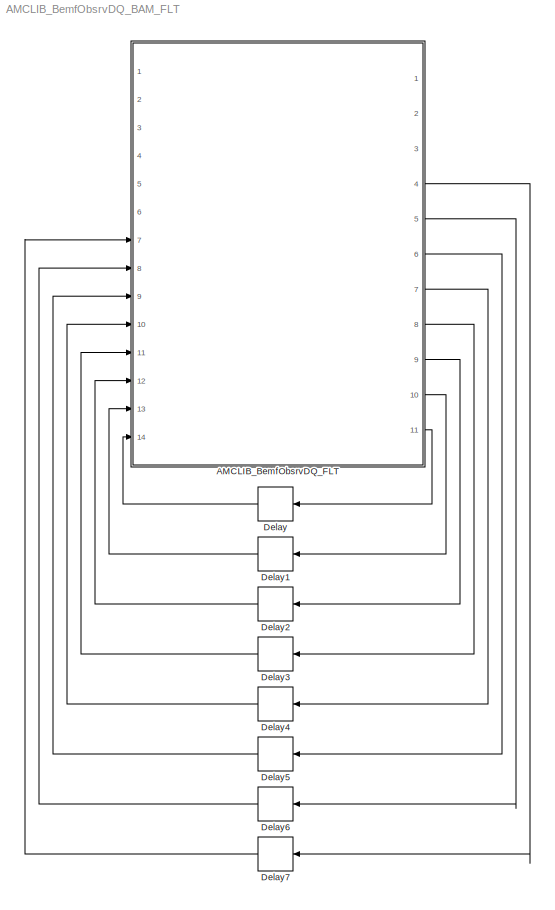
MODEL AMCLIB_BemfObsrvDQ_BAM_FLT
KIND model
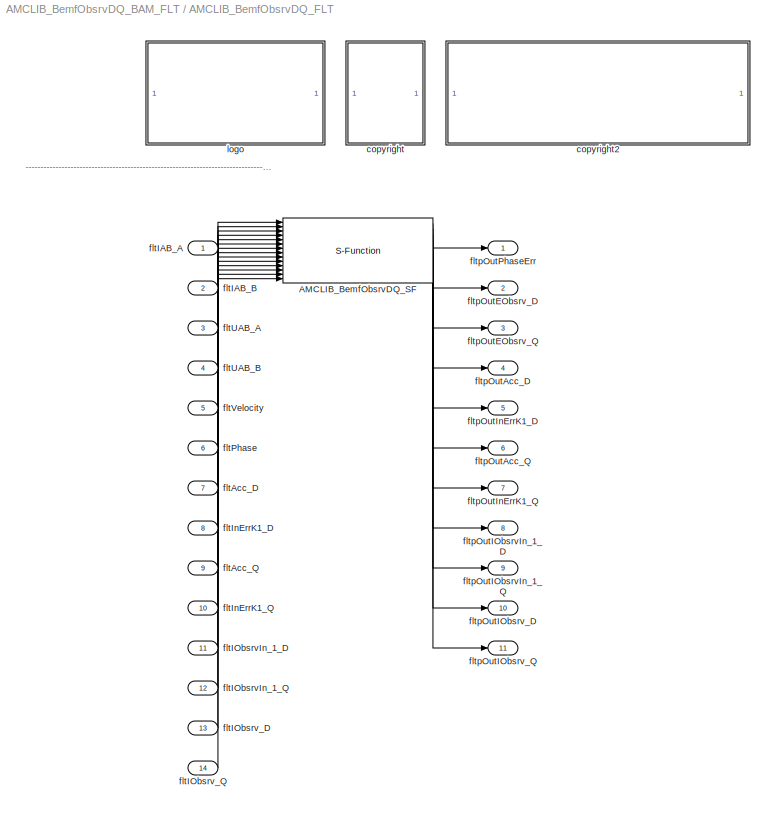
BLOCK [SubSystem] AMCLIB_BemfObsrvDQ_FLT
  Ports = [14, 11]
  RequestExecContextInheritance = off
  SID = 1
BLOCK [S-Function] AMCLIB_BemfObsrvDQ_FLT/AMCLIB_BemfObsrvDQ_SF
  EnableBusSupport = off
  FunctionName = AMCLIB_BemfObsrvDQ_SF_FLT
  Parameters = fltIGain,fltUGain,fltWIGain,fltEGain,fltCC1sc_D,fltCC1sc_Q,fltCC2sc_D,fltCC2sc_Q,fltUpperLimit_D,fltUpperLimit_Q,fltLowerLimit_D,fltLowerLimit_Q
  Ports = [14, 11]
  SID = 4
BLOCK [SubSystem] AMCLIB_BemfObsrvDQ_FLT/<copyright redacted>
  Ports = []
  RequestExecContextInheritance = off
  SID = 34
BLOCK [SubSystem] AMCLIB_BemfObsrvDQ_FLT/copyright2
  Ports = []
  RequestExecContextInheritance = off
  SID = 37
BLOCK [Inport] AMCLIB_BemfObsrvDQ_FLT/fltAcc_D
  IconDisplay = Port number
  Port = 7
  SID = 11
BLOCK [Inport] AMCLIB_BemfObsrvDQ_FLT/fltAcc_Q
  IconDisplay = Port number
  Port = 9
  SID = 13
BLOCK [Inport] AMCLIB_BemfObsrvDQ_FLT/fltIAB_A
  IconDisplay = Port number
  SID = 5
BLOCK [Inport] AMCLIB_BemfObsrvDQ_FLT/fltIAB_B
  IconDisplay = Port number
  Port = 2
  SID = 6
BLOCK [Inport] AMCLIB_BemfObsrvDQ_FLT/fltIObsrvIn_1_D
  IconDisplay = Port number
  Port = 11
  SID = 15
BLOCK [Inport] AMCLIB_BemfObsrvDQ_FLT/fltIObsrvIn_1_Q
  IconDisplay = Port number
  Port = 12
  SID = 16
BLOCK [Inport] AMCLIB_BemfObsrvDQ_FLT/fltIObsrv_D
  IconDisplay = Port number
  Port = 13
  SID = 17
BLOCK [Inport] AMCLIB_BemfObsrvDQ_FLT/fltIObsrv_Q
  IconDisplay = Port number
  Port = 14
  SID = 18
BLOCK [Inport] AMCLIB_BemfObsrvDQ_FLT/fltInErrK1_D
  IconDisplay = Port number
  Port = 8
  SID = 12
BLOCK [Inport] AMCLIB_BemfObsrvDQ_FLT/fltInErrK1_Q
  IconDisplay = Port number
  Port = 10
  SID = 14
BLOCK [Inport] AMCLIB_BemfObsrvDQ_FLT/fltPhase
  IconDisplay = Port number
  Port = 6
  SID = 10
BLOCK [Inport] AMCLIB_BemfObsrvDQ_FLT/fltUAB_A
  IconDisplay = Port number
  Port = 3
  SID = 7
BLOCK [Inport] AMCLIB_BemfObsrvDQ_FLT/fltUAB_B
  IconDisplay = Port number
  Port = 4
  SID = 8
BLOCK [Inport] AMCLIB_BemfObsrvDQ_FLT/fltVelocity
  IconDisplay = Port number
  Port = 5
  SID = 9
BLOCK [Outport] AMCLIB_BemfObsrvDQ_FLT/fltpOutAcc_D
  IconDisplay = Port number
  Port = 4
  SID = 22
BLOCK [Outport] AMCLIB_BemfObsrvDQ_FLT/fltpOutAcc_Q
  IconDisplay = Port number
  Port = 6
  SID = 24
BLOCK [Outport] AMCLIB_BemfObsrvDQ_FLT/fltpOutEObsrv_D
  IconDisplay = Port number
  Port = 2
  SID = 20
BLOCK [Outport] AMCLIB_BemfObsrvDQ_FLT/fltpOutEObsrv_Q
  IconDisplay = Port number
  Port = 3
  SID = 21
BLOCK [Outport] AMCLIB_BemfObsrvDQ_FLT/fltpOutIObsrvIn_1_D
  IconDisplay = Port number
  Port = 8
  SID = 26
BLOCK [Outport] AMCLIB_BemfObsrvDQ_FLT/fltpOutIObsrvIn_1_Q
  IconDisplay = Port number
  Port = 9
  SID = 27
BLOCK [Outport] AMCLIB_BemfObsrvDQ_FLT/fltpOutIObsrv_D
  IconDisplay = Port number
  Port = 10
  SID = 28
BLOCK [Outport] AMCLIB_BemfObsrvDQ_FLT/fltpOutIObsrv_Q
  IconDisplay = Port number
  Port = 11
  SID = 29
BLOCK [Outport] AMCLIB_BemfObsrvDQ_FLT/fltpOutInErrK1_D
  IconDisplay = Port number
  Port = 5
  SID = 23
BLOCK [Outport] AMCLIB_BemfObsrvDQ_FLT/fltpOutInErrK1_Q
  IconDisplay = Port number
  Port = 7
  SID = 25
BLOCK [Outport] AMCLIB_BemfObsrvDQ_FLT/fltpOutPhaseErr
  IconDisplay = Port number
  SID = 19
BLOCK [SubSystem] AMCLIB_BemfObsrvDQ_FLT/logo
  Ports = []
  RequestExecContextInheritance = off
  SID = 30
BLOCK [Delay] Delay
  DelayLength = 1
  InitialCondition = 0
  InputPortMap = u0
  Ports = [1, 1]
  SID = 40
BLOCK [Delay] Delay1
  DelayLength = 1
  InitialCondition = 0
  InputPortMap = u0
  Ports = [1, 1]
  SID = 41
BLOCK [Delay] Delay2
  DelayLength = 1
  InitialCondition = 0
  InputPortMap = u0
  Ports = [1, 1]
  SID = 42
BLOCK [Delay] Delay3
  DelayLength = 1
  InitialCondition = 0
  InputPortMap = u0
  Ports = [1, 1]
  SID = 43
BLOCK [Delay] Delay4
  DelayLength = 1
  InitialCondition = 0
  InputPortMap = u0
  Ports = [1, 1]
  SID = 44
BLOCK [Delay] Delay5
  DelayLength = 1
  InitialCondition = 0
  InputPortMap = u0
  Ports = [1, 1]
  SID = 45
BLOCK [Delay] Delay6
  DelayLength = 1
  InitialCondition = 0
  InputPortMap = u0
  Ports = [1, 1]
  SID = 46
BLOCK [Delay] Delay7
  DelayLength = 1
  InitialCondition = 0
  InputPortMap = u0
  Ports = [1, 1]
  SID = 47
ANNOTATION AMCLIB_BemfObsrvDQ_FLT: ---------------------------------------------------------------------------------------------------------------------------------------------------------------------------------------------------
LINE AMCLIB_BemfObsrvDQ_FLT/AMCLIB_BemfObsrvDQ_SF:1 -> AMCLIB_BemfObsrvDQ_FLT/fltpOutPhaseErr:1
LINE AMCLIB_BemfObsrvDQ_FLT/AMCLIB_BemfObsrvDQ_SF:10 -> AMCLIB_BemfObsrvDQ_FLT/fltpOutIObsrv_D:1
LINE AMCLIB_BemfObsrvDQ_FLT/AMCLIB_BemfObsrvDQ_SF:11 -> AMCLIB_BemfObsrvDQ_FLT/fltpOutIObsrv_Q:1
LINE AMCLIB_BemfObsrvDQ_FLT/AMCLIB_BemfObsrvDQ_SF:2 -> AMCLIB_BemfObsrvDQ_FLT/fltpOutEObsrv_D:1
LINE AMCLIB_BemfObsrvDQ_FLT/AMCLIB_BemfObsrvDQ_SF:3 -> AMCLIB_BemfObsrvDQ_FLT/fltpOutEObsrv_Q:1
LINE AMCLIB_BemfObsrvDQ_FLT/AMCLIB_BemfObsrvDQ_SF:4 -> AMCLIB_BemfObsrvDQ_FLT/fltpOutAcc_D:1
LINE AMCLIB_BemfObsrvDQ_FLT/AMCLIB_BemfObsrvDQ_SF:5 -> AMCLIB_BemfObsrvDQ_FLT/fltpOutInErrK1_D:1
LINE AMCLIB_BemfObsrvDQ_FLT/AMCLIB_BemfObsrvDQ_SF:6 -> AMCLIB_BemfObsrvDQ_FLT/fltpOutAcc_Q:1
LINE AMCLIB_BemfObsrvDQ_FLT/AMCLIB_BemfObsrvDQ_SF:7 -> AMCLIB_BemfObsrvDQ_FLT/fltpOutInErrK1_Q:1
LINE AMCLIB_BemfObsrvDQ_FLT/AMCLIB_BemfObsrvDQ_SF:8 -> AMCLIB_BemfObsrvDQ_FLT/fltpOutIObsrvIn_1_D:1
LINE AMCLIB_BemfObsrvDQ_FLT/AMCLIB_BemfObsrvDQ_SF:9 -> AMCLIB_BemfObsrvDQ_FLT/fltpOutIObsrvIn_1_Q:1
LINE AMCLIB_BemfObsrvDQ_FLT/fltAcc_D:1 -> AMCLIB_BemfObsrvDQ_FLT/AMCLIB_BemfObsrvDQ_SF:7
LINE AMCLIB_BemfObsrvDQ_FLT/fltAcc_Q:1 -> AMCLIB_BemfObsrvDQ_FLT/AMCLIB_BemfObsrvDQ_SF:9
LINE AMCLIB_BemfObsrvDQ_FLT/fltIAB_A:1 -> AMCLIB_BemfObsrvDQ_FLT/AMCLIB_BemfObsrvDQ_SF:1
LINE AMCLIB_BemfObsrvDQ_FLT/fltIAB_B:1 -> AMCLIB_BemfObsrvDQ_FLT/AMCLIB_BemfObsrvDQ_SF:2
LINE AMCLIB_BemfObsrvDQ_FLT/fltIObsrvIn_1_D:1 -> AMCLIB_BemfObsrvDQ_FLT/AMCLIB_BemfObsrvDQ_SF:11
LINE AMCLIB_BemfObsrvDQ_FLT/fltIObsrvIn_1_Q:1 -> AMCLIB_BemfObsrvDQ_FLT/AMCLIB_BemfObsrvDQ_SF:12
LINE AMCLIB_BemfObsrvDQ_FLT/fltIObsrv_D:1 -> AMCLIB_BemfObsrvDQ_FLT/AMCLIB_BemfObsrvDQ_SF:13
LINE AMCLIB_BemfObsrvDQ_FLT/fltIObsrv_Q:1 -> AMCLIB_BemfObsrvDQ_FLT/AMCLIB_BemfObsrvDQ_SF:14
LINE AMCLIB_BemfObsrvDQ_FLT/fltInErrK1_D:1 -> AMCLIB_BemfObsrvDQ_FLT/AMCLIB_BemfObsrvDQ_SF:8
LINE AMCLIB_BemfObsrvDQ_FLT/fltInErrK1_Q:1 -> AMCLIB_BemfObsrvDQ_FLT/AMCLIB_BemfObsrvDQ_SF:10
LINE AMCLIB_BemfObsrvDQ_FLT/fltPhase:1 -> AMCLIB_BemfObsrvDQ_FLT/AMCLIB_BemfObsrvDQ_SF:6
LINE AMCLIB_BemfObsrvDQ_FLT/fltUAB_A:1 -> AMCLIB_BemfObsrvDQ_FLT/AMCLIB_BemfObsrvDQ_SF:3
LINE AMCLIB_BemfObsrvDQ_FLT/fltUAB_B:1 -> AMCLIB_BemfObsrvDQ_FLT/AMCLIB_BemfObsrvDQ_SF:4
LINE AMCLIB_BemfObsrvDQ_FLT/fltVelocity:1 -> AMCLIB_BemfObsrvDQ_FLT/AMCLIB_BemfObsrvDQ_SF:5
LINE AMCLIB_BemfObsrvDQ_FLT:10 -> Delay1:1
LINE AMCLIB_BemfObsrvDQ_FLT:11 -> Delay:1
LINE AMCLIB_BemfObsrvDQ_FLT:4 -> Delay7:1
LINE AMCLIB_BemfObsrvDQ_FLT:5 -> Delay6:1
LINE AMCLIB_BemfObsrvDQ_FLT:6 -> Delay5:1
LINE AMCLIB_BemfObsrvDQ_FLT:7 -> Delay4:1
LINE AMCLIB_BemfObsrvDQ_FLT:8 -> Delay3:1
LINE AMCLIB_BemfObsrvDQ_FLT:9 -> Delay2:1
LINE Delay1:1 -> AMCLIB_BemfObsrvDQ_FLT:13
LINE Delay2:1 -> AMCLIB_BemfObsrvDQ_FLT:12
LINE Delay3:1 -> AMCLIB_BemfObsrvDQ_FLT:11
LINE Delay4:1 -> AMCLIB_BemfObsrvDQ_FLT:10
LINE Delay5:1 -> AMCLIB_BemfObsrvDQ_FLT:9
LINE Delay6:1 -> AMCLIB_BemfObsrvDQ_FLT:8
LINE Delay7:1 -> AMCLIB_BemfObsrvDQ_FLT:7
LINE Delay:1 -> AMCLIB_BemfObsrvDQ_FLT:14
